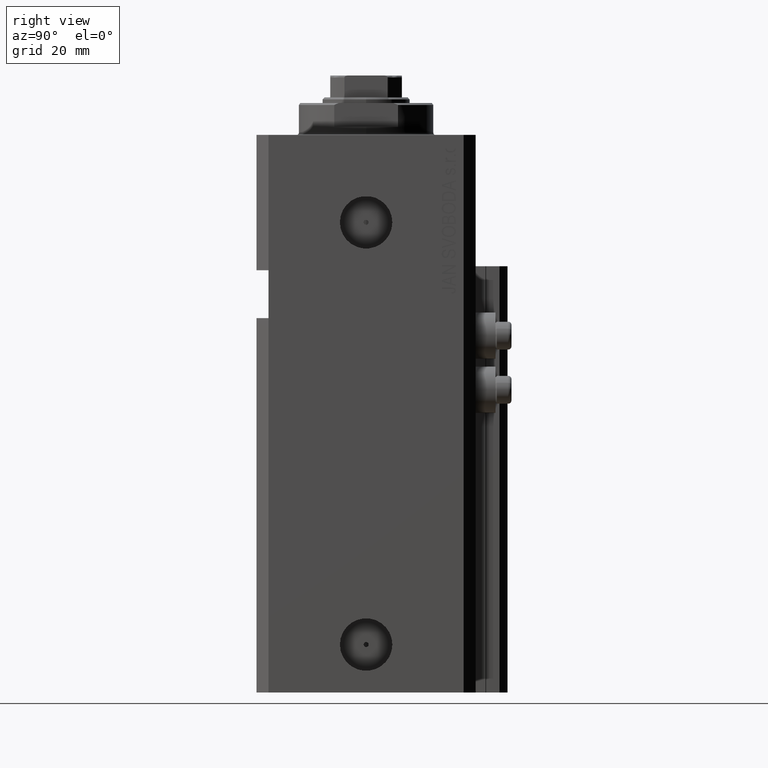
[diagram: clean part render]
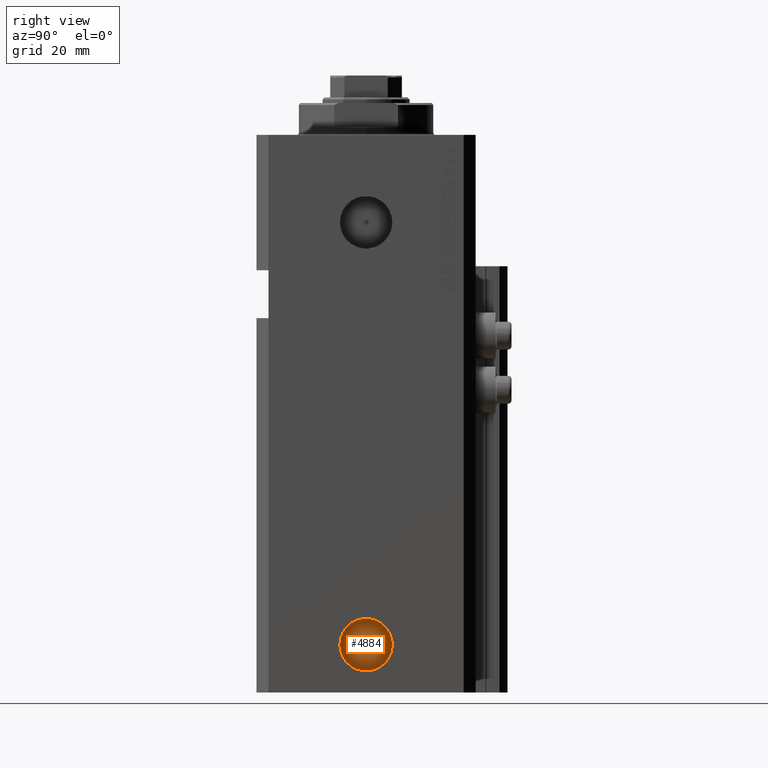
[diagram: same view with one face highlighted and labeled with its STEP entity id]
A machine part, right view. The second image highlights one B-rep face of the part: STEP entity #4884.
In plain terms, the highlighted planar face has unit normal (1, -0, 0).
Its self-contained STEP definition (entity closure, byte-faithful):
#538 = FACE_OUTER_BOUND ( 'NONE', #39570, .T. ) ;
#1226 = ORIENTED_EDGE ( 'NONE', *, *, #42927, .T. ) ;
#1557 = DIRECTION ( 'NONE',  ( 1.000000000000000000, -1.334402673828349134E-14, 0.000000000000000000 ) ) ;
#4638 = EDGE_CURVE ( 'NONE', #22104, #19431, #24648, .T. ) ;
#4884 = ADVANCED_FACE ( 'NONE', ( #22329, #538 ), #22102, .T. ) ;
#7795 = AXIS2_PLACEMENT_3D ( 'NONE', #36748, #7948, #29532 ) ;
#7948 = DIRECTION ( 'NONE',  ( 1.000000000000000000, -1.334402673828349134E-14, 0.000000000000000000 ) ) ;
#13269 = CARTESIAN_POINT ( 'NONE',  ( 24.40000000000025437, -2.287819767924812928E-13, -128.0000000000000000 ) ) ;
#13352 = CARTESIAN_POINT ( 'NONE',  ( 24.40000000000016911, -6.580000000000215010, -128.0000000000000000 ) ) ;
#13476 = CIRCLE ( 'NONE', #46358, 0.6250000000000067724 ) ;
#14709 = AXIS2_PLACEMENT_3D ( 'NONE', #34384, #1557, #30791 ) ;
#15180 = CARTESIAN_POINT ( 'NONE',  ( 24.40000000000034319, 6.579999999999756710, -128.0000000000000000 ) ) ;
#16722 = AXIS2_PLACEMENT_3D ( 'NONE', #18203, #39332, #35965 ) ;
#18203 = CARTESIAN_POINT ( 'NONE',  ( 24.40000000000025437, -2.287819767924812928E-13, -128.0000000000000000 ) ) ;
#19431 = VERTEX_POINT ( 'NONE', #13352 ) ;
#20121 = EDGE_LOOP ( 'NONE', ( #20823, #36724 ) ) ;
#20823 = ORIENTED_EDGE ( 'NONE', *, *, #33823, .F. ) ;
#22102 = PLANE ( 'NONE',  #7795 ) ;
#22104 = VERTEX_POINT ( 'NONE', #15180 ) ;
#22329 = FACE_BOUND ( 'NONE', #20121, .T. ) ;
#22363 = CARTESIAN_POINT ( 'NONE',  ( 24.40000000000026148, 0.6249999999997779554, -128.0000000000000000 ) ) ;
#23013 = VERTEX_POINT ( 'NONE', #22363 ) ;
#24648 = CIRCLE ( 'NONE', #14709, 6.579999999999985860 ) ;
#25141 = EDGE_CURVE ( 'NONE', #33769, #23013, #29693, .T. ) ;
#27779 = DIRECTION ( 'NONE',  ( 1.110223024625144550E-14, 1.000000000000000000, 0.000000000000000000 ) ) ;
#29046 = ORIENTED_EDGE ( 'NONE', *, *, #4638, .T. ) ;
#29532 = DIRECTION ( 'NONE',  ( 1.334402673828349134E-14, 1.000000000000000000, 0.000000000000000000 ) ) ;
#29693 = CIRCLE ( 'NONE', #35834, 0.6250000000000067724 ) ;
#30791 = DIRECTION ( 'NONE',  ( 1.318178933113078171E-14, 1.000000000000000000, 0.000000000000000000 ) ) ;
#31387 = CARTESIAN_POINT ( 'NONE',  ( 24.40000000000025437, -2.287819767924812928E-13, -128.0000000000000000 ) ) ;
#31721 = DIRECTION ( 'NONE',  ( 1.110223024625144550E-14, 1.000000000000000000, 0.000000000000000000 ) ) ;
#33769 = VERTEX_POINT ( 'NONE', #42636 ) ;
#33823 = EDGE_CURVE ( 'NONE', #23013, #33769, #13476, .T. ) ;
#34384 = CARTESIAN_POINT ( 'NONE',  ( 24.40000000000025437, -2.287819767924812928E-13, -128.0000000000000000 ) ) ;
#34836 = DIRECTION ( 'NONE',  ( 1.000000000000000000, -1.334402673828349134E-14, 0.000000000000000000 ) ) ;
#35102 = CIRCLE ( 'NONE', #16722, 6.579999999999985860 ) ;
#35834 = AXIS2_PLACEMENT_3D ( 'NONE', #13269, #34836, #31721 ) ;
#35965 = DIRECTION ( 'NONE',  ( 1.318178933113078171E-14, 1.000000000000000000, 0.000000000000000000 ) ) ;
#36724 = ORIENTED_EDGE ( 'NONE', *, *, #25141, .F. ) ;
#36748 = CARTESIAN_POINT ( 'NONE',  ( 24.40000000000025437, -2.287819767924812928E-13, -128.0000000000000000 ) ) ;
#39332 = DIRECTION ( 'NONE',  ( 1.000000000000000000, -1.334402673828349134E-14, 0.000000000000000000 ) ) ;
#39570 = EDGE_LOOP ( 'NONE', ( #29046, #1226 ) ) ;
#42636 = CARTESIAN_POINT ( 'NONE',  ( 24.40000000000024727, -0.6250000000002354783, -128.0000000000000000 ) ) ;
#42927 = EDGE_CURVE ( 'NONE', #19431, #22104, #35102, .T. ) ;
#45978 = DIRECTION ( 'NONE',  ( 1.000000000000000000, -1.334402673828349134E-14, 0.000000000000000000 ) ) ;
#46358 = AXIS2_PLACEMENT_3D ( 'NONE', #31387, #45978, #27779 ) ;